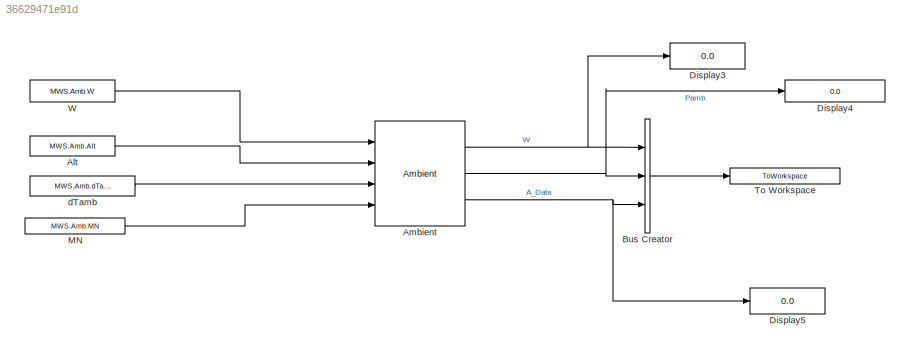
MODEL slx_36629471e91d
KIND model
CONFIG AbsTol = auto
CONFIG EnableMultiTasking = on
CONFIG FixedStep = 1
CONFIG MaxStep = auto
CONFIG MinStep = auto
CONFIG RelTol = 1e-3
CONFIG SampleTimeConstraint = Unconstrained
CONFIG Solver = FixedStepDiscrete
CONFIG SolverName = FixedStepDiscrete
CONFIG StartTime = 0.0
CONFIG StopTime = 1
BLOCK [Constant] Alt
  Value = MWS.Amb.Alt
BLOCK [Reference] Ambient  REF=Lib_Turbo_Ambient_TMATS/Ambient
  Ports = [4, 3]
  SourceBlock = Lib_Turbo_Ambient_TMATS/Ambient
  SourceType = T-MATS: Ambient Library Block
BLOCK [BusCreator] Bus Creator
  DisplayOption = bar
  InheritFromInputs = on
  Inputs = 3
  Ports = [3, 1]
BLOCK [Display] Display3
  Decimation = 1
  Format = long
  Ports = [1]
BLOCK [Display] Display4
  Decimation = 1
  Format = long
  Ports = [1]
BLOCK [Display] Display5
  Decimation = 1
  Ports = [1]
BLOCK [Constant] MN
  Value = MWS.Amb.MN
BLOCK [ToWorkspace] To Workspace
  MaxDataPoints = inf
  Ports = [1]
  SampleTime = -1
  VariableName = TB_Output
BLOCK [Constant] W
  Value = MWS.Amb.W
BLOCK [Constant] dTamb
  Value = MWS.Amb.dTamb
LINE Alt:1 -> Ambient:2
NET Ambient:1 -> Bus Creator:1, Display3:1
NET Ambient:2 -> Bus Creator:2, Display4:1
NET Ambient:3 -> Bus Creator:3, Display5:1
LINE Bus Creator:1 -> To Workspace:1
LINE MN:1 -> Ambient:4
LINE W:1 -> Ambient:1
LINE dTamb:1 -> Ambient:3
note: NET lines group one-source signal fan-out (src -> all destinations, sorted); 1:1 wires keep LINE
